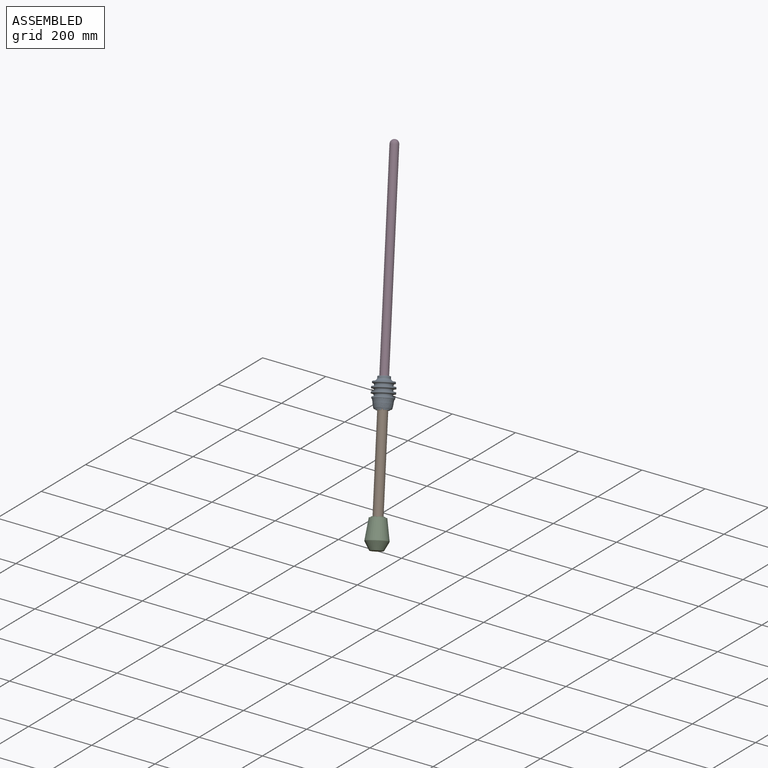
[diagram: assembled view]
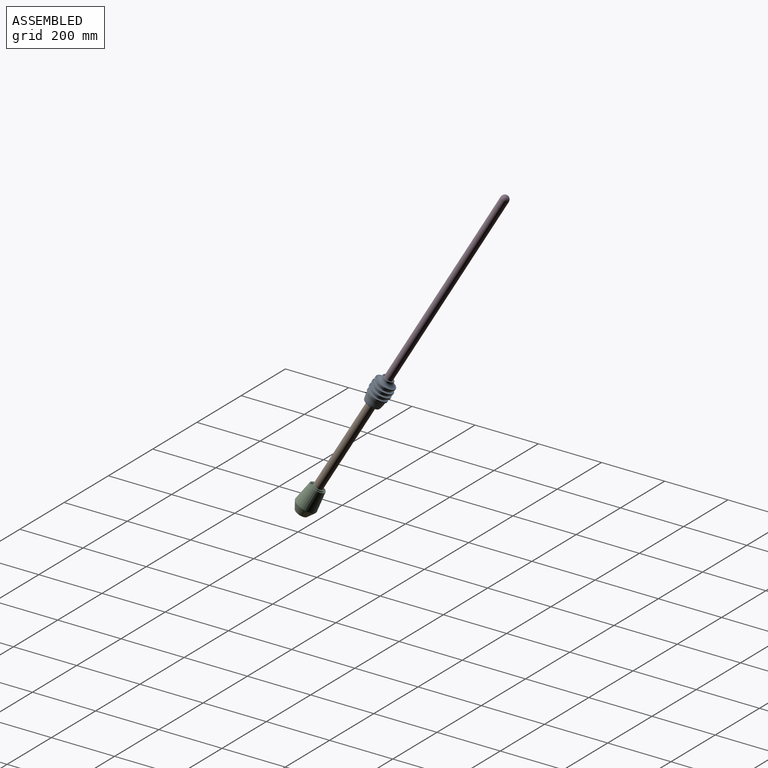
[diagram: assembled view, second angle]
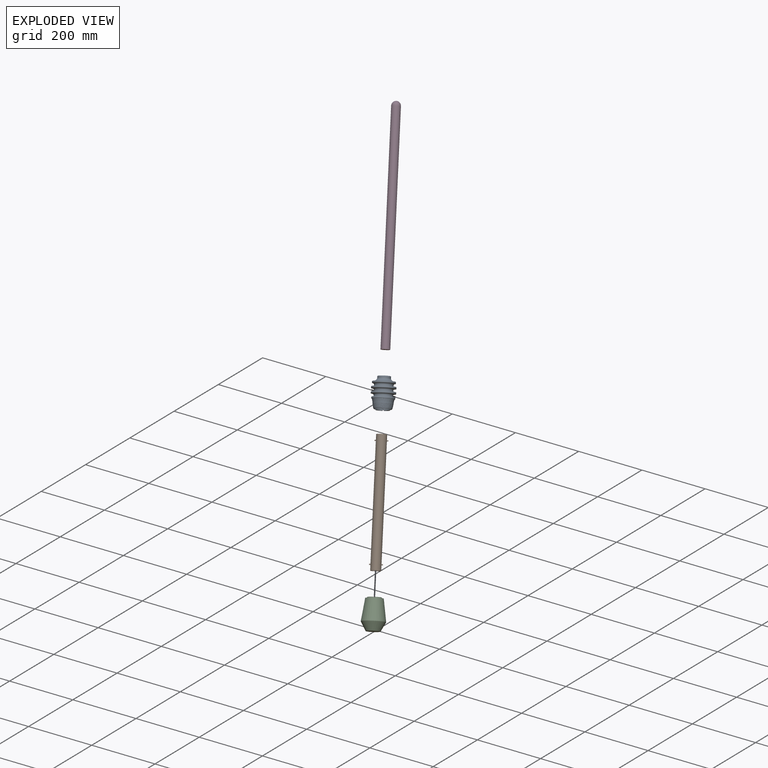
[diagram: exploded view]
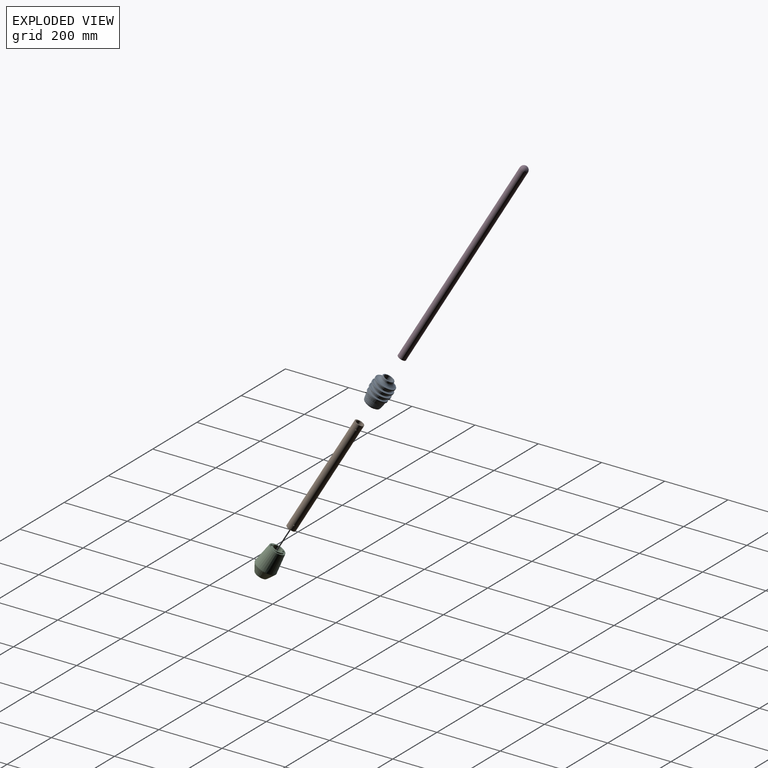
[diagram: exploded view, second angle]
ASSEMBLY  parts=4 mates=3
PART A: 77 faces, bbox 82.7x82.7x89.2 mm
  f0: cylinder r=14.31mm len=28.63mm, axis (0,0,-1), area 2476.5mm2, adj f56,f75
  f1: cylinder r=1.84mm len=0.57mm, axis (0,-1,0), area 0mm2, adj f3,f9,f22
  f2: cylinder r=1.84mm len=5.65mm, axis (-0.71,-0.71,0), area 19.8mm2, adj f3,f5,f19,f23,f27
  f3: cylinder r=14.31mm len=55.17mm, axis (0,0,-1), area 4253.7mm2, adj f1,f2,f4,f7,f8,f9,f10,f11
  f4: cylinder r=14.31mm len=33.86mm, axis (0,0,-1), area 311.8mm2, adj f3,f7,f14,f15,f18,f24
  f5: cylinder r=19.05mm len=44.45mm, axis (0,0,-1), area 4479.3mm2, adj f2,f6,f7,f8,f9,f10,f11,f12
  f6: cylinder r=19.05mm len=34.71mm, axis (0,0,-1), area 425.6mm2, adj f5,f7,f14,f15,f18,f24
  f7: plane 37.92x17.21mm, normal (0,0,1), area 230.8mm2, adj f3,f4,f5,f6,f10,f14
  f8: plane 37.92x17.21mm, normal (0,0,1), area 230.8mm2, adj f3,f5,f9,f13
  f9: plane 25.44x4.81mm, normal (-1,0,0), area 120.5mm2, adj f1,f3,f5,f8,f22
  f10: plane 25.4x4.77mm, normal (1,0,0), area 121.1mm2, adj f3,f5,f7,f11
  f11: cylinder r=1.84mm len=4.83mm, axis (0,-1,0), area 7.6mm2, adj f3,f5,f10,f23,f26
  f12: cylinder r=1.84mm len=4.82mm, axis (0,-1,0), area 7.9mm2, adj f3,f5,f13,f28
  f13: plane 25.4x4.77mm, normal (-1,0,0), area 121.1mm2, adj f3,f5,f8,f12
  f14: plane 25.37x4.81mm, normal (1,0,0), area 120.2mm2, adj f4,f6,f7,f24
  f15: cylinder r=1.84mm len=5.98mm, axis (-0.71,-0.71,0), area 27.6mm2, adj f4,f6,f16,f18
  f16: plane 12.7x3.37mm, normal (0.71,-0.71,0), area 60.5mm2, adj f3,f5,f15,f17
  f17: cylinder r=1.84mm len=5.79mm, axis (-0.71,-0.71,0), area 21.5mm2, adj f3,f5,f16,f29
  f18: plane 9.47x3.53mm, normal (-0.71,0.71,0), area 42.5mm2, adj f4,f6,f15,f24
  f19: plane 12.7x3.37mm, normal (-0.71,0.71,0), area 60.5mm2, adj f2,f3,f5,f21
  f20: plane 9.46x3.52mm, normal (0.71,-0.71,0), area 42.8mm2, adj f3,f5,f21,f22
  f21: cylinder r=1.84mm len=5.98mm, axis (-0.71,-0.71,0), area 27.6mm2, adj f3,f5,f19,f20
  f22: bspline ~15.93x13.6mm, area 61.8mm2, adj f1,f3,f5,f9,f20
  f23: bspline ~16.69x12.88mm, area 86.2mm2, adj f2,f3,f5,f11,f26,f27
  f24: bspline ~15.92x13.65mm, area 61.8mm2, adj f4,f6,f14,f18
  f25: bspline ~16.51x12.77mm, area 79.3mm2, adj f3,f5,f28,f29
  f26: bspline ~3.53x0.09mm, area 0.2mm2, adj f3,f11,f23
  f27: bspline ~2.56x2.52mm, area 0.2mm2, adj f2,f3,f23
  f28: bspline ~6.41x0.63mm, area 2.6mm2, adj f3,f5,f12,f25
  f29: bspline ~5.12x4.67mm, area 2.8mm2, adj f3,f5,f17,f25
  f30: torus R=24.87mm, axis (0,0,-1), area 512mm2, adj f31,f63
  f31: torus R=25.39mm, axis (0,0,-1), area 522mm2, adj f30,f32
  f32: cone r=27.27mm half-angle=10.8deg, axis (0,0,-1), area 1841.4mm2, adj f31,f33
  f33: plane 60.2x60.2mm, normal (0,0,1), area 165.6mm2, adj f32,f64
  f34: cylinder r=31.12mm len=62.23mm, axis (0,0,-1), area 595.9mm2, adj f64,f65
  f35: plane 60.2x60.2mm, normal (0,0,-1), area 165.6mm2, adj f36,f65
  f36: torus R=29.21mm, axis (0,0,-1), area 699.3mm2, adj f35,f37
  f37: cylinder r=25.4mm len=50.8mm, axis (0,0,-1), area 472.9mm2, adj f36,f38
  f38: torus R=29.66mm, axis (0,0,-1), area 1049.3mm2, adj f37,f39
  f39: plane 64.01x64.01mm, normal (0,0,1), area 537.3mm2, adj f38,f66
  f40: cylinder r=33.02mm len=66.04mm, axis (0,0,-1), area 632.4mm2, adj f66,f67
  f41: plane 64.01x64.01mm, normal (0,0,-1), area 537.3mm2, adj f42,f67
  f42: torus R=29.21mm, axis (0,0,-1), area 699.3mm2, adj f41,f43
  f43: cylinder r=25.4mm len=50.8mm, axis (0,0,-1), area 472.9mm2, adj f42,f44
  f44: torus R=29.66mm, axis (0,0,-1), area 1049.3mm2, adj f43,f45
  f45: plane 64.01x64.01mm, normal (0,0,1), area 537.3mm2, adj f44,f68
  f46: cylinder r=33.02mm len=66.04mm, axis (0,0,-1), area 632.4mm2, adj f68,f69
  f47: plane 64.01x64.01mm, normal (0,0,-1), area 537.3mm2, adj f48,f69
  f48: torus R=29.21mm, axis (0,0,-1), area 699.3mm2, adj f47,f49
  f49: cylinder r=25.4mm len=50.8mm, axis (0,0,-1), area 472.9mm2, adj f48,f50
  f50: torus R=29.66mm, axis (0,0,-1), area 1049.3mm2, adj f49,f51
  f51: plane 60.2x60.2mm, normal (0,0,1), area 165.6mm2, adj f50,f70
  f52: cylinder r=31.12mm len=62.23mm, axis (0,0,-1), area 595.9mm2, adj f70,f71
  f53: plane 60.2x60.2mm, normal (0,0,-1), area 165.6mm2, adj f54,f71
  f54: torus R=29.21mm, axis (0,0,-1), area 2020mm2, adj f53,f55
  f55: cylinder r=17.91mm len=35.82mm, axis (0,0,-1), area 651.9mm2, adj f54,f73
  f56: plane 33.28x33.28mm, normal (0,0,-1), area 226.1mm2, adj f0,f73
  f57: plane 43.18x43.18mm, normal (0,0,1), area 324.3mm2, adj f5,f58
  f58: cylinder r=21.59mm len=43.18mm, axis (0,0,-1), area 5685.3mm2, adj f57,f59
  f59: plane 46.16x46.16mm, normal (0,0,1), area 209mm2, adj f58,f72
  f60: cone r=24.13mm half-angle=10.8deg, axis (0,0,-1), area 268.8mm2, adj f61,f72
  f61: torus R=23.3mm, axis (0,0,-1), area 482mm2, adj f60,f62
  f62: torus R=23.82mm, axis (0,0,-1), area 492mm2, adj f61,f63
  f63: torus R=24.35mm, axis (0,0,-1), area 502.8mm2, adj f30,f62
  f64: torus R=30.1mm, axis (0,0,1), area 308.3mm2, adj f33,f34
  f65: torus R=30.1mm, axis (0,0,1), area 308.3mm2, adj f34,f35
  f66: torus R=32mm, axis (0,0,1), area 327.4mm2, adj f39,f40
  f67: torus R=32mm, axis (0,0,1), area 327.4mm2, adj f40,f41
  f68: torus R=32mm, axis (0,0,1), area 327.4mm2, adj f45,f46
  f69: torus R=32mm, axis (0,0,1), area 327.4mm2, adj f46,f47
  f70: torus R=30.1mm, axis (0,0,1), area 308.3mm2, adj f51,f52
  f71: torus R=30.1mm, axis (0,0,1), area 308.3mm2, adj f52,f53
  f72: torus R=23.08mm, axis (0,0,-1), area 262.9mm2, adj f59,f60
  f73: torus R=16.64mm, axis (0,0,-1), area 218.7mm2, adj f55,f56
  f74: cylinder r=12.83mm len=25.65mm, axis (0,0,1), area 511.8mm2, adj f75,f76
  f75: plane 28.63x28.63mm, normal (0,0,-1), area 126.7mm2, adj f0,f74
  f76: plane 28.63x28.63mm, normal (0,0,1), area 126.7mm2, adj f3,f74
PART B: 12 faces, bbox 35.8x28.5x355.6 mm
  f0: cylinder r=14.27mm len=355.6mm, axis (0,0,-1), area 31863.7mm2, adj f1,f3,f5,f7,f9,f11
  f1: cylinder r=1.52mm len=3.71mm, axis (-1,0,0), area 35.2mm2, adj f0,f2
  f2: plane 3.05x3.05mm, normal (1,0,0), area 7.3mm2, adj f1
  f3: cylinder r=1.59mm len=3.72mm, axis (1,0,0), area 36.7mm2, adj f0,f4
  f4: plane 3.18x3.18mm, normal (-1,0,0), area 7.9mm2, adj f3
  f5: plane 28.55x28.55mm, normal (0,0,-1), area 274.1mm2, adj f0,f6
  f6: cylinder r=10.79mm len=355.6mm, axis (0,0,1), area 24119.3mm2, adj f5,f11
  f7: cylinder r=1.52mm len=3.71mm, axis (-1,0,0), area 35.2mm2, adj f0,f8
  f8: plane 3.05x3.05mm, normal (1,0,0), area 7.3mm2, adj f7
  f9: cylinder r=1.59mm len=3.72mm, axis (1,0,0), area 36.7mm2, adj f0,f10
  f10: plane 3.18x3.18mm, normal (-1,0,0), area 7.9mm2, adj f9
  f11: plane 28.55x28.55mm, normal (0,0,1), area 274.1mm2, adj f0,f6
PART C: 37 faces, bbox 71.4x71.4x89.1 mm
  f0: cone r=33.02mm half-angle=8.3deg, axis (0,0,-1), area 10880.7mm2, adj f5,f35
  f1: cone r=19.05mm half-angle=28.8deg, axis (0,0,1), area 4388.9mm2, adj f35,f36
  f2: plane 35.09x35.09mm, normal (0,0,-1), area 967.3mm2, adj f36
  f3: plane 40.64x40.64mm, normal (0,0,1), area 157.1mm2, adj f4,f8
  f4: cylinder r=20.32mm len=41.91mm, axis (0,0,-1), area 5350.8mm2, adj f3,f5
  f5: plane 48.26x48.26mm, normal (0,0,1), area 532mm2, adj f0,f4
  f6: cylinder r=14.31mm len=55.17mm, axis (0,0,-1), area 4253.7mm2, adj f7,f9,f10,f11,f12,f13,f14,f15
  f7: cylinder r=14.31mm len=33.86mm, axis (0,0,-1), area 311.8mm2, adj f6,f11,f18,f19,f22,f28
  f8: cylinder r=19.05mm len=44.45mm, axis (0,0,-1), area 4904.9mm2, adj f3,f10,f11,f12,f13,f14,f15,f16
  f9: cylinder r=1.84mm len=0.57mm, axis (0,-1,0), area 0mm2, adj f6,f13,f26
  f10: cylinder r=1.84mm len=5.65mm, axis (-0.71,-0.71,0), area 19.8mm2, adj f6,f8,f23,f27,f31
  f11: plane 37.92x17.21mm, normal (0,0,1), area 230.8mm2, adj f6,f7,f8,f14,f18
  f12: plane 37.92x17.21mm, normal (0,0,1), area 230.8mm2, adj f6,f8,f13,f17
  f13: plane 25.44x4.81mm, normal (-1,0,0), area 120.5mm2, adj f6,f8,f9,f12,f26
  f14: plane 25.4x4.77mm, normal (1,0,0), area 121.1mm2, adj f6,f8,f11,f15
  f15: cylinder r=1.84mm len=4.83mm, axis (0,-1,0), area 7.6mm2, adj f6,f8,f14,f27,f30
  f16: cylinder r=1.84mm len=4.82mm, axis (0,-1,0), area 7.9mm2, adj f6,f8,f17,f32
  f17: plane 25.4x4.77mm, normal (-1,0,0), area 121.1mm2, adj f6,f8,f12,f16
  f18: plane 25.37x4.81mm, normal (1,0,0), area 120.2mm2, adj f7,f8,f11,f28
  f19: cylinder r=1.84mm len=5.98mm, axis (-0.71,-0.71,0), area 27.6mm2, adj f7,f8,f20,f22
  f20: plane 12.7x3.37mm, normal (0.71,-0.71,0), area 60.5mm2, adj f6,f8,f19,f21
  f21: cylinder r=1.84mm len=5.79mm, axis (-0.71,-0.71,0), area 21.5mm2, adj f6,f8,f20,f33
  f22: plane 9.47x3.53mm, normal (-0.71,0.71,0), area 42.5mm2, adj f7,f8,f19,f28
  f23: plane 12.7x3.37mm, normal (-0.71,0.71,0), area 60.5mm2, adj f6,f8,f10,f25
  f24: plane 9.46x3.52mm, normal (0.71,-0.71,0), area 42.8mm2, adj f6,f8,f25,f26
  f25: cylinder r=1.84mm len=5.98mm, axis (-0.71,-0.71,0), area 27.6mm2, adj f6,f8,f23,f24
  f26: bspline ~15.93x13.6mm, area 61.8mm2, adj f6,f8,f9,f13,f24
  f27: bspline ~16.69x12.88mm, area 86.2mm2, adj f6,f8,f10,f15,f30,f31
  f28: bspline ~15.92x13.65mm, area 61.8mm2, adj f7,f8,f18,f22
  f29: bspline ~16.51x12.77mm, area 79.3mm2, adj f6,f8,f32,f33
  f30: bspline ~3.53x0.09mm, area 0.2mm2, adj f6,f15,f27
  f31: bspline ~2.56x2.52mm, area 0.2mm2, adj f6,f10,f27
  f32: bspline ~6.41x0.63mm, area 2.6mm2, adj f6,f8,f16,f29
  f33: bspline ~5.12x4.67mm, area 2.8mm2, adj f6,f8,f21,f29
  f34: plane 28.63x28.63mm, normal (0,0,1), area 643.6mm2, adj f6
  f35: torus R=30.38mm, axis (0,0,1), area 339.1mm2, adj f0,f1
  f36: torus R=17.55mm, axis (0,0,-1), area 320.3mm2, adj f1,f2
PART D: 3 faces, bbox 25.4x25.4x647.7 mm
  f0: sphere r=12.7mm, area 1013.4mm2, adj f1
  f1: cylinder r=12.7mm len=635mm, axis (0,0,-1), area 50670.7mm2, adj f0,f2
  f2: plane 25.4x25.4mm, normal (0,0,-1), area 506.7mm2, adj f1
PLACE A rot(axis=(-0.25,0.94,-0.25),172.3deg) t=(-260.81,33.3,448.74)mm
PLACE B rot(axis=(-0.69,-0.19,0.69),42.2deg) t=(-172.51,-119.62,142.88)mm
PLACE C rot(axis=(-0.69,-0.19,0.69),42.2deg) t=(-172.35,-119.9,142.33)mm
PLACE D rot(axis=(-0.69,-0.19,0.69),42.2deg) t=(-265.94,42.2,466.53)mm
MATE slider B.f0 <-> A.f0  axis (0.25,-0.43,-0.87) through (-216.01,-44.28,293.56)mm
MATE slider C.f0 <-> B.f0  axis (0.25,-0.43,-0.87) through (-174.98,-115.35,151.44)mm
MATE slider D.f1 <-> A.f0  axis (0.25,-0.43,-0.87) through (-345.32,179.68,741.5)mm
